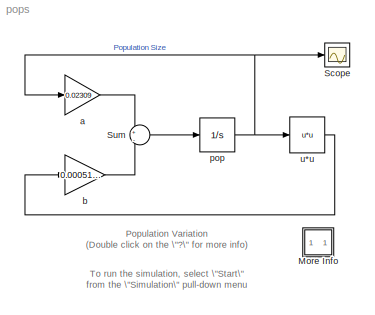
MODEL pops
KIND model
CONFIG PreLoadFcn = initial_pop=20;
BLOCK [SubSystem] More Info
  MaskDisplay = disp('?')
  MaskIconFrame = on
  MaskIconOpaque = on
  MaskIconRotate = none
  MaskIconUnits = autoscale
  MinAlgLoopOccurrences = off
  Ports = []
  PropExecContextAcrossSSBoundary = on
  RTWSystemCode = Auto
  TreatAsAtomicUnit = off
BLOCK [Scope] Scope
  DataFormat = Array
  NumInputPorts = 1
  Ports = [1]
  TickLabels = on
  TimeRange = 300
  YMax = 45
  YMin = 20
BLOCK [Sum] Sum
  IconShape = round
  Inputs = +|-
  Ports = [2, 1]
BLOCK [Gain] a
  Gain = 0.02309
BLOCK [Gain] b
  Gain = 0.0005157
BLOCK [Integrator] pop
  InitialCondition = initial_pop
  Ports = [1, 1]
BLOCK [Fcn] u*u
  Expr = u*u
ANNOTATION (root): Population Variation\n(Double click on the \"?\" for more info)
ANNOTATION (root): To run the simulation, select \"Start\"\nfrom the \"Simulation\" pull-down menu
ANNOTATION More Info: Change the parameter initial_pop in the workspace and\nsee how the final population outcome is affected.
ANNOTATION More Info: This system models a population in which the number\nof members follows the law dm/dt = a*m - b*m*m.
ANNOTATION More Info: To see a longer demo, just type \"popdemo\" at the command \nline while the \"pops\" window is open.
LINE Sum:1 -> pop:1
LINE a:1 -> Sum:1
LINE b:1 -> Sum:2
NET pop:1 -> Scope:1, a:1, u*u:1
LINE u*u:1 -> b:1
note: NET lines group one-source signal fan-out (src -> all destinations, sorted); 1:1 wires keep LINE
